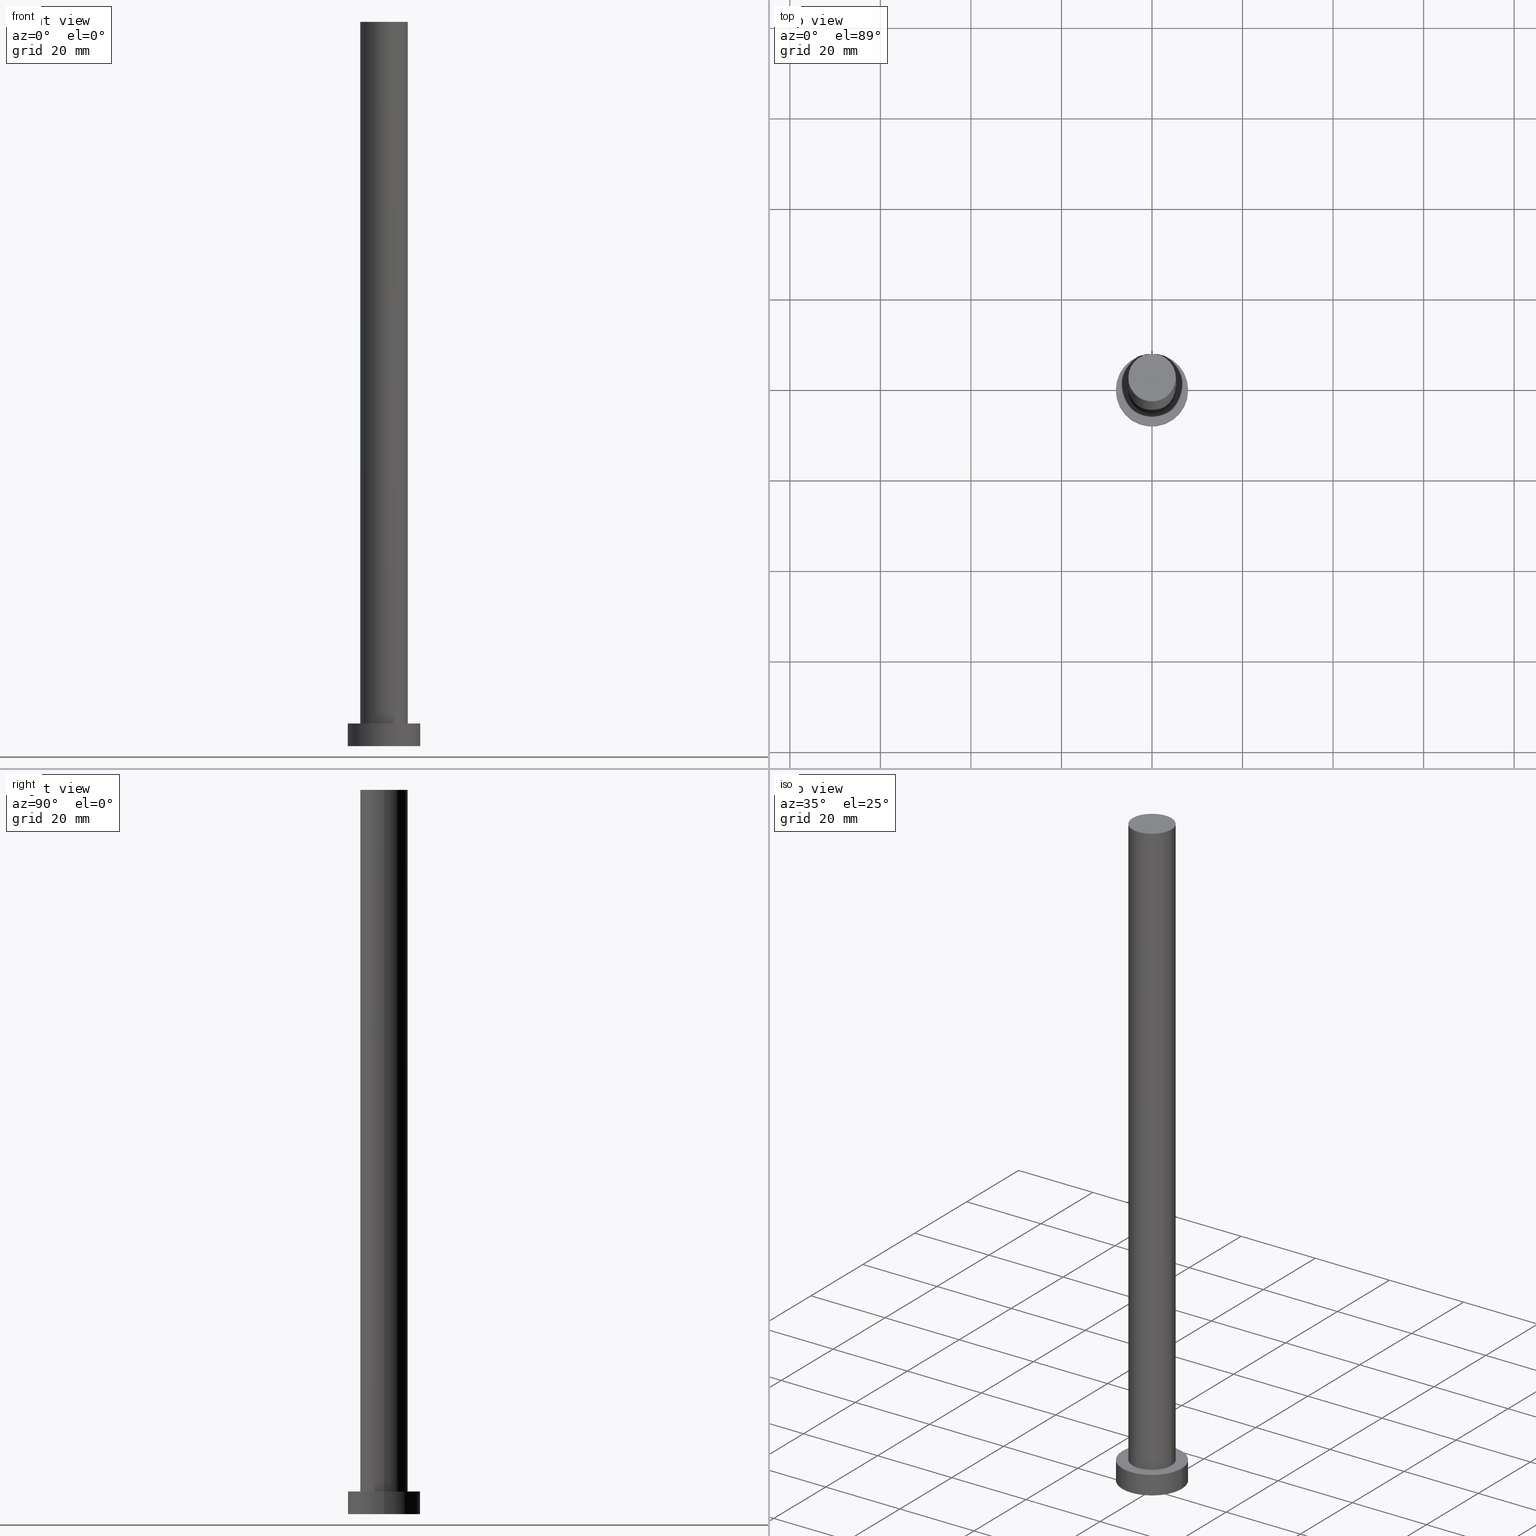
[diagram: canonical four-view strip — front | top / right | iso, engineering-drawing reading convention]
A machine part, canonical four-view strip (front | top / right | iso — engineering-drawing reading convention). The complete STEP part file that produces these views, byte-faithful:
ISO-10303-21;
HEADER;
FILE_DESCRIPTION (( 'STEP AP203' ),
    '1' );
FILE_NAME ('43b9.STEP',
    '2023-02-12T11:16:55',
    ( '' ),
    ( '' ),
    'SwSTEP 2.0',
    'SolidWorks 2019',
    '' );
FILE_SCHEMA (( 'CONFIG_CONTROL_DESIGN' ));
ENDSEC;

DATA;
#1 = CIRCLE ( 'NONE', #178, 8.000000000000000000 ) ;
#2 = LOCAL_TIME ( 12, 16, 55.00000000000000000, #119 ) ;
#3 = PERSON_AND_ORGANIZATION ( #254, #56 ) ;
#4 = LINE ( 'NONE', #229, #111 ) ;
#5 = ORIENTED_EDGE ( 'NONE', *, *, #198, .F. ) ;
#6 = PRODUCT_RELATED_PRODUCT_CATEGORY ( 'detail', '', ( #12 ) ) ;
#7 = PLANE ( 'NONE',  #174 ) ;
#8 = ORIENTED_EDGE ( 'NONE', *, *, #13, .T. ) ;
#9 = CARTESIAN_POINT ( 'NONE',  ( 0.000000000000000000, 0.000000000000000000, 160.0000000000000000 ) ) ;
#10 = AXIS2_PLACEMENT_3D ( 'NONE', #74, #87, #143 ) ;
#11 = ORIENTED_EDGE ( 'NONE', *, *, #114, .T. ) ;
#12 = PRODUCT ( '43b9', '43b9', '', ( #236 ) ) ;
#13 = EDGE_CURVE ( 'NONE', #46, #243, #59, .T. ) ;
#14 = AXIS2_PLACEMENT_3D ( 'NONE', #127, #32, #176 ) ;
#15 = ORIENTED_EDGE ( 'NONE', *, *, #249, .T. ) ;
#16 = LOCAL_TIME ( 12, 16, 55.00000000000000000, #234 ) ;
#17 = AXIS2_PLACEMENT_3D ( 'NONE', #36, #73, #146 ) ;
#18 = FACE_OUTER_BOUND ( 'NONE', #200, .T. ) ;
#19 = PERSON_AND_ORGANIZATION ( #254, #56 ) ;
#20 = FACE_OUTER_BOUND ( 'NONE', #157, .T. ) ;
#21 = ADVANCED_FACE ( 'NONE', ( #69 ), #199, .T. ) ;
#22 = CARTESIAN_POINT ( 'NONE',  ( 5.250000000000000888, 6.429395695523605139E-16, 160.0000000000000000 ) ) ;
#23 = ADVANCED_FACE ( 'NONE', ( #191 ), #90, .T. ) ;
#24 = PERSON_AND_ORGANIZATION_ROLE ( 'design_supplier' ) ;
#25 = DIRECTION ( 'NONE',  ( -1.000000000000000000, 0.000000000000000000, 0.000000000000000000 ) ) ;
#26 = ORIENTED_EDGE ( 'NONE', *, *, #114, .F. ) ;
#27 = DIRECTION ( 'NONE',  ( -0.000000000000000000, -0.000000000000000000, -1.000000000000000000 ) ) ;
#28 = AXIS2_PLACEMENT_3D ( 'NONE', #92, #212, #237 ) ;
#29 = ORIENTED_EDGE ( 'NONE', *, *, #108, .F. ) ;
#30 = VERTEX_POINT ( 'NONE', #161 ) ;
#31 = ORIENTED_EDGE ( 'NONE', *, *, #108, .T. ) ;
#32 = DIRECTION ( 'NONE',  ( 0.000000000000000000, 0.000000000000000000, 1.000000000000000000 ) ) ;
#33 = DATE_AND_TIME ( #201, #2 ) ;
#34 = APPROVAL ( #186, 'NEUR�EN�' ) ;
#35 = CC_DESIGN_APPROVAL ( #130, ( #116 ) ) ;
#36 = CARTESIAN_POINT ( 'NONE',  ( 0.000000000000000000, 0.000000000000000000, 0.000000000000000000 ) ) ;
#37 = CARTESIAN_POINT ( 'NONE',  ( 0.000000000000000000, 0.000000000000000000, 5.000000000000000000 ) ) ;
#38 = FACE_OUTER_BOUND ( 'NONE', #248, .T. ) ;
#39 = CARTESIAN_POINT ( 'NONE',  ( 0.000000000000000000, 0.000000000000000000, 5.000000000000000000 ) ) ;
#40 = VECTOR ( 'NONE', #27, 1000.000000000000000 ) ;
#41 = CC_DESIGN_DATE_AND_TIME_ASSIGNMENT ( #150, #110, ( #216 ) ) ;
#42 = APPLICATION_PROTOCOL_DEFINITION ( 'international standard', 'config_control_design', 1994, #151 ) ;
#43 = DIRECTION ( 'NONE',  ( -0.000000000000000000, -0.000000000000000000, -1.000000000000000000 ) ) ;
#44 = COORDINATED_UNIVERSAL_TIME_OFFSET ( 1, 0, .AHEAD. ) ;
#45 = APPROVAL_PERSON_ORGANIZATION ( #19, #130, #192 ) ;
#46 = VERTEX_POINT ( 'NONE', #203 ) ;
#47 = PERSON_AND_ORGANIZATION_ROLE ( 'classification_officer' ) ;
#48 = CARTESIAN_POINT ( 'NONE',  ( 0.000000000000000000, 0.000000000000000000, 5.000000000000000000 ) ) ;
#49 = LINE ( 'NONE', #221, #40 ) ;
#50 = ORIENTED_EDGE ( 'NONE', *, *, #13, .F. ) ;
#51 = FACE_OUTER_BOUND ( 'NONE', #64, .T. ) ;
#52 = ORIENTED_EDGE ( 'NONE', *, *, #82, .T. ) ;
#53 = DIRECTION ( 'NONE',  ( -1.000000000000000000, 0.000000000000000000, 0.000000000000000000 ) ) ;
#54 = ORIENTED_EDGE ( 'NONE', *, *, #140, .F. ) ;
#55 = DESIGN_CONTEXT ( 'detailed design', #151, 'design' ) ;
#56 = ORGANIZATION ( 'NEUR�EN�', 'NEUR�EN�', '' ) ;
#57 = DATE_AND_TIME ( #185, #206 ) ;
#58 = ADVANCED_FACE ( 'NONE', ( #38 ), #167, .T. ) ;
#59 = CIRCLE ( 'NONE', #14, 8.000000000000000000 ) ;
#60 = CALENDAR_DATE ( 2023, 12, 2 ) ;
#61 = DIRECTION ( 'NONE',  ( 1.000000000000000000, 0.000000000000000000, 0.000000000000000000 ) ) ;
#62 = APPROVAL_DATE_TIME ( #95, #121 ) ;
#63 = AXIS2_PLACEMENT_3D ( 'NONE', #39, #204, #61 ) ;
#64 = EDGE_LOOP ( 'NONE', ( #226, #85 ) ) ;
#65 = VERTEX_POINT ( 'NONE', #131 ) ;
#66 = PERSON_AND_ORGANIZATION ( #254, #56 ) ;
#67 = CARTESIAN_POINT ( 'NONE',  ( 0.000000000000000000, 0.000000000000000000, 0.000000000000000000 ) ) ;
#68 = ORIENTED_EDGE ( 'NONE', *, *, #97, .T. ) ;
#69 = FACE_OUTER_BOUND ( 'NONE', #223, .T. ) ;
#70 = ORIENTED_EDGE ( 'NONE', *, *, #189, .F. ) ;
#71 = AXIS2_PLACEMENT_3D ( 'NONE', #255, #129, #76 ) ;
#72 = AXIS2_PLACEMENT_3D ( 'NONE', #88, #112, #190 ) ;
#73 = DIRECTION ( 'NONE',  ( 0.000000000000000000, 0.000000000000000000, 1.000000000000000000 ) ) ;
#74 = CARTESIAN_POINT ( 'NONE',  ( 0.000000000000000000, 0.000000000000000000, 0.000000000000000000 ) ) ;
#75 = UNCERTAINTY_MEASURE_WITH_UNIT (LENGTH_MEASURE( 1.000000000000000082E-05 ), #96, 'distance_accuracy_value', 'NONE');
#76 = DIRECTION ( 'NONE',  ( -1.000000000000000000, 0.000000000000000000, 0.000000000000000000 ) ) ;
#77 = CALENDAR_DATE ( 2023, 12, 2 ) ;
#78 = AXIS2_PLACEMENT_3D ( 'NONE', #107, #184, #142 ) ;
#79 = LOCAL_TIME ( 12, 16, 55.00000000000000000, #84 ) ;
#80 = EDGE_CURVE ( 'NONE', #238, #30, #105, .T. ) ;
#81 = CARTESIAN_POINT ( 'NONE',  ( 0.000000000000000000, 0.000000000000000000, 5.000000000000000000 ) ) ;
#82 = EDGE_CURVE ( 'NONE', #30, #238, #1, .T. ) ;
#83 = ORIENTED_EDGE ( 'NONE', *, *, #118, .T. ) ;
#84 = COORDINATED_UNIVERSAL_TIME_OFFSET ( 1, 0, .AHEAD. ) ;
#85 = ORIENTED_EDGE ( 'NONE', *, *, #80, .F. ) ;
#86 = CIRCLE ( 'NONE', #252, 5.250000000000000888 ) ;
#87 = DIRECTION ( 'NONE',  ( 0.000000000000000000, 0.000000000000000000, 1.000000000000000000 ) ) ;
#88 = CARTESIAN_POINT ( 'NONE',  ( 0.000000000000000000, 0.000000000000000000, 5.000000000000000000 ) ) ;
#89 = DIRECTION ( 'NONE',  ( 1.000000000000000000, 0.000000000000000000, 0.000000000000000000 ) ) ;
#90 = CYLINDRICAL_SURFACE ( 'NONE', #71, 5.250000000000000888 ) ;
#91 = DATE_AND_TIME ( #60, #16 ) ;
#92 = CARTESIAN_POINT ( 'NONE',  ( 0.000000000000000000, 0.000000000000000000, 160.0000000000000000 ) ) ;
#93 = ADVANCED_BREP_SHAPE_REPRESENTATION ( '43b9', ( #222, #10 ), #120 ) ;
#94 = APPROVAL_PERSON_ORGANIZATION ( #215, #121, #102 ) ;
#95 = DATE_AND_TIME ( #210, #79 ) ;
#96 =( LENGTH_UNIT ( ) NAMED_UNIT ( * ) SI_UNIT ( .MILLI., .METRE. ) );
#97 = EDGE_CURVE ( 'NONE', #124, #153, #164, .T. ) ;
#98 = DIRECTION ( 'NONE',  ( 0.000000000000000000, 0.000000000000000000, 1.000000000000000000 ) ) ;
#99 = CC_DESIGN_PERSON_AND_ORGANIZATION_ASSIGNMENT ( #113, #251, ( #216 ) ) ;
#100 = DIRECTION ( 'NONE',  ( 0.000000000000000000, 0.000000000000000000, 1.000000000000000000 ) ) ;
#101 = AXIS2_PLACEMENT_3D ( 'NONE', #37, #207, #109 ) ;
#102 = APPROVAL_ROLE ( '' ) ;
#103 = CARTESIAN_POINT ( 'NONE',  ( 0.000000000000000000, 0.000000000000000000, 5.000000000000000000 ) ) ;
#104 = CC_DESIGN_PERSON_AND_ORGANIZATION_ASSIGNMENT ( #144, #171, ( #12 ) ) ;
#105 = CIRCLE ( 'NONE', #17, 8.000000000000000000 ) ;
#106 = CC_DESIGN_APPROVAL ( #121, ( #220 ) ) ;
#107 = CARTESIAN_POINT ( 'NONE',  ( 0.000000000000000000, 0.000000000000000000, 160.0000000000000000 ) ) ;
#108 = EDGE_CURVE ( 'NONE', #243, #46, #170, .T. ) ;
#109 = DIRECTION ( 'NONE',  ( 1.000000000000000000, 0.000000000000000000, 0.000000000000000000 ) ) ;
#110 = DATE_TIME_ROLE ( 'creation_date' ) ;
#111 = VECTOR ( 'NONE', #43, 1000.000000000000000 ) ;
#112 = DIRECTION ( 'NONE',  ( 0.000000000000000000, 0.000000000000000000, 1.000000000000000000 ) ) ;
#113 = PERSON_AND_ORGANIZATION ( #254, #56 ) ;
#114 = EDGE_CURVE ( 'NONE', #245, #124, #250, .T. ) ;
#115 = AXIS2_PLACEMENT_3D ( 'NONE', #169, #145, #187 ) ;
#116 = PRODUCT_DEFINITION_FORMATION_WITH_SPECIFIED_SOURCE ( 'LIBOVOLN�', '', #12, .NOT_KNOWN. ) ;
#117 = LINE ( 'NONE', #177, #183 ) ;
#118 = EDGE_CURVE ( 'NONE', #65, #153, #163, .T. ) ;
#119 = COORDINATED_UNIVERSAL_TIME_OFFSET ( 1, 0, .AHEAD. ) ;
#120 =( GEOMETRIC_REPRESENTATION_CONTEXT ( 3 ) GLOBAL_UNCERTAINTY_ASSIGNED_CONTEXT ( ( #75 ) ) GLOBAL_UNIT_ASSIGNED_CONTEXT ( ( #96, #244, #219 ) ) REPRESENTATION_CONTEXT ( 'NONE', 'WORKASPACE' ) );
#121 = APPROVAL ( #125, 'NEUR�EN�' ) ;
#122 = ORIENTED_EDGE ( 'NONE', *, *, #132, .T. ) ;
#123 = ORIENTED_EDGE ( 'NONE', *, *, #80, .T. ) ;
#124 = VERTEX_POINT ( 'NONE', #22 ) ;
#125 = APPROVAL_STATUS ( 'not_yet_approved' ) ;
#126 = CC_DESIGN_PERSON_AND_ORGANIZATION_ASSIGNMENT ( #241, #24, ( #116 ) ) ;
#127 = CARTESIAN_POINT ( 'NONE',  ( 0.000000000000000000, 0.000000000000000000, 5.000000000000000000 ) ) ;
#128 = CLOSED_SHELL ( 'NONE', ( #58, #180, #21, #166, #228, #23, #209 ) ) ;
#129 = DIRECTION ( 'NONE',  ( -0.000000000000000000, -0.000000000000000000, -1.000000000000000000 ) ) ;
#130 = APPROVAL ( #165, 'NEUR�EN�' ) ;
#131 = CARTESIAN_POINT ( 'NONE',  ( -5.250000000000000888, 0.000000000000000000, 5.000000000000000000 ) ) ;
#132 = EDGE_CURVE ( 'NONE', #124, #245, #156, .T. ) ;
#133 = PERSON_AND_ORGANIZATION ( #254, #56 ) ;
#134 = DIRECTION ( 'NONE',  ( 1.000000000000000000, 0.000000000000000000, 0.000000000000000000 ) ) ;
#135 = CC_DESIGN_PERSON_AND_ORGANIZATION_ASSIGNMENT ( #66, #47, ( #220 ) ) ;
#136 = APPLICATION_CONTEXT ( 'configuration controlled 3d designs of mechanical parts and assemblies' ) ;
#137 = ORIENTED_EDGE ( 'NONE', *, *, #118, .F. ) ;
#138 = DIRECTION ( 'NONE',  ( -0.000000000000000000, -0.000000000000000000, -1.000000000000000000 ) ) ;
#139 = ORIENTED_EDGE ( 'NONE', *, *, #140, .T. ) ;
#140 = EDGE_CURVE ( 'NONE', #243, #30, #4, .T. ) ;
#141 = ORIENTED_EDGE ( 'NONE', *, *, #249, .F. ) ;
#142 = DIRECTION ( 'NONE',  ( -1.000000000000000000, 0.000000000000000000, 0.000000000000000000 ) ) ;
#143 = DIRECTION ( 'NONE',  ( 1.000000000000000000, 0.000000000000000000, 0.000000000000000000 ) ) ;
#144 = PERSON_AND_ORGANIZATION ( #254, #56 ) ;
#145 = DIRECTION ( 'NONE',  ( 0.000000000000000000, 0.000000000000000000, 1.000000000000000000 ) ) ;
#146 = DIRECTION ( 'NONE',  ( 1.000000000000000000, 0.000000000000000000, 0.000000000000000000 ) ) ;
#147 = PRODUCT_DEFINITION_SHAPE ( 'NONE', 'NONE',  #216 ) ;
#148 = CC_DESIGN_DATE_AND_TIME_ASSIGNMENT ( #33, #160, ( #220 ) ) ;
#149 = AXIS2_PLACEMENT_3D ( 'NONE', #103, #247, #53 ) ;
#150 = DATE_AND_TIME ( #77, #224 ) ;
#151 = APPLICATION_CONTEXT ( 'configuration controlled 3d designs of mechanical parts and assemblies' ) ;
#152 = DIRECTION ( 'NONE',  ( 1.000000000000000000, 0.000000000000000000, -0.000000000000000000 ) ) ;
#153 = VERTEX_POINT ( 'NONE', #211 ) ;
#154 = DIRECTION ( 'NONE',  ( -0.000000000000000000, -0.000000000000000000, -1.000000000000000000 ) ) ;
#155 = ORIENTED_EDGE ( 'NONE', *, *, #132, .F. ) ;
#156 = CIRCLE ( 'NONE', #115, 5.250000000000000888 ) ;
#157 = EDGE_LOOP ( 'NONE', ( #50, #225, #123, #54 ) ) ;
#158 = EDGE_LOOP ( 'NONE', ( #137, #141 ) ) ;
#159 = ORIENTED_EDGE ( 'NONE', *, *, #198, .T. ) ;
#160 = DATE_TIME_ROLE ( 'classification_date' ) ;
#161 = CARTESIAN_POINT ( 'NONE',  ( -8.000000000000000000, 0.000000000000000000, 0.000000000000000000 ) ) ;
#162 = APPROVAL_DATE_TIME ( #57, #34 ) ;
#163 = CIRCLE ( 'NONE', #63, 5.250000000000000888 ) ;
#164 = LINE ( 'NONE', #233, #213 ) ;
#165 = APPROVAL_STATUS ( 'not_yet_approved' ) ;
#166 = ADVANCED_FACE ( 'NONE', ( #173, #18 ), #232, .T. ) ;
#167 = CYLINDRICAL_SURFACE ( 'NONE', #78, 5.250000000000000888 ) ;
#168 = APPROVAL_DATE_TIME ( #91, #130 ) ;
#169 = CARTESIAN_POINT ( 'NONE',  ( 0.000000000000000000, 0.000000000000000000, 160.0000000000000000 ) ) ;
#170 = CIRCLE ( 'NONE', #101, 8.000000000000000000 ) ;
#171 = PERSON_AND_ORGANIZATION_ROLE ( 'design_owner' ) ;
#172 = CC_DESIGN_SECURITY_CLASSIFICATION ( #220, ( #116 ) ) ;
#173 = FACE_BOUND ( 'NONE', #158, .T. ) ;
#174 = AXIS2_PLACEMENT_3D ( 'NONE', #67, #98, #152 ) ;
#175 = DIRECTION ( 'NONE',  ( 0.000000000000000000, 0.000000000000000000, 1.000000000000000000 ) ) ;
#176 = DIRECTION ( 'NONE',  ( 1.000000000000000000, 0.000000000000000000, 0.000000000000000000 ) ) ;
#177 = CARTESIAN_POINT ( 'NONE',  ( 8.000000000000000000, 9.797174393178825657E-16, 5.000000000000000000 ) ) ;
#178 = AXIS2_PLACEMENT_3D ( 'NONE', #230, #188, #89 ) ;
#179 = FACE_OUTER_BOUND ( 'NONE', #246, .T. ) ;
#180 = ADVANCED_FACE ( 'NONE', ( #20 ), #214, .T. ) ;
#181 = EDGE_LOOP ( 'NONE', ( #196, #26, #159, #83 ) ) ;
#182 = CC_DESIGN_PERSON_AND_ORGANIZATION_ASSIGNMENT ( #133, #208, ( #116 ) ) ;
#183 = VECTOR ( 'NONE', #154, 1000.000000000000000 ) ;
#184 = DIRECTION ( 'NONE',  ( -0.000000000000000000, -0.000000000000000000, -1.000000000000000000 ) ) ;
#185 = CALENDAR_DATE ( 2023, 12, 2 ) ;
#186 = APPROVAL_STATUS ( 'not_yet_approved' ) ;
#187 = DIRECTION ( 'NONE',  ( 1.000000000000000000, 0.000000000000000000, 0.000000000000000000 ) ) ;
#188 = DIRECTION ( 'NONE',  ( 0.000000000000000000, 0.000000000000000000, 1.000000000000000000 ) ) ;
#189 = EDGE_CURVE ( 'NONE', #46, #238, #117, .T. ) ;
#190 = DIRECTION ( 'NONE',  ( 1.000000000000000000, 0.000000000000000000, -0.000000000000000000 ) ) ;
#191 = FACE_OUTER_BOUND ( 'NONE', #181, .T. ) ;
#192 = APPROVAL_ROLE ( '' ) ;
#193 = APPROVAL_PERSON_ORGANIZATION ( #3, #34, #227 ) ;
#194 = PLANE ( 'NONE',  #202 ) ;
#195 = AXIS2_PLACEMENT_3D ( 'NONE', #81, #138, #25 ) ;
#196 = ORIENTED_EDGE ( 'NONE', *, *, #97, .F. ) ;
#197 = CARTESIAN_POINT ( 'NONE',  ( 8.000000000000000000, 9.797174393178825657E-16, 0.000000000000000000 ) ) ;
#198 = EDGE_CURVE ( 'NONE', #245, #65, #49, .T. ) ;
#199 = CYLINDRICAL_SURFACE ( 'NONE', #149, 8.000000000000000000 ) ;
#200 = EDGE_LOOP ( 'NONE', ( #31, #8 ) ) ;
#201 = CALENDAR_DATE ( 2023, 12, 2 ) ;
#202 = AXIS2_PLACEMENT_3D ( 'NONE', #9, #175, #242 ) ;
#203 = CARTESIAN_POINT ( 'NONE',  ( 8.000000000000000000, 9.797174393178825657E-16, 5.000000000000000000 ) ) ;
#204 = DIRECTION ( 'NONE',  ( 0.000000000000000000, 0.000000000000000000, 1.000000000000000000 ) ) ;
#205 = DIRECTION ( 'NONE',  ( -0.000000000000000000, -0.000000000000000000, -1.000000000000000000 ) ) ;
#206 = LOCAL_TIME ( 12, 16, 55.00000000000000000, #44 ) ;
#207 = DIRECTION ( 'NONE',  ( 0.000000000000000000, 0.000000000000000000, 1.000000000000000000 ) ) ;
#208 = PERSON_AND_ORGANIZATION_ROLE ( 'creator' ) ;
#209 = ADVANCED_FACE ( 'NONE', ( #179 ), #194, .T. ) ;
#210 = CALENDAR_DATE ( 2023, 12, 2 ) ;
#211 = CARTESIAN_POINT ( 'NONE',  ( 5.250000000000000888, 6.429395695523605139E-16, 5.000000000000000000 ) ) ;
#212 = DIRECTION ( 'NONE',  ( 0.000000000000000000, 0.000000000000000000, 1.000000000000000000 ) ) ;
#213 = VECTOR ( 'NONE', #205, 1000.000000000000000 ) ;
#214 = CYLINDRICAL_SURFACE ( 'NONE', #195, 8.000000000000000000 ) ;
#215 = PERSON_AND_ORGANIZATION ( #254, #56 ) ;
#216 = PRODUCT_DEFINITION ( 'NEZN�M�', '', #116, #55 ) ;
#217 = CARTESIAN_POINT ( 'NONE',  ( -5.250000000000000888, 0.000000000000000000, 160.0000000000000000 ) ) ;
#218 = SHAPE_DEFINITION_REPRESENTATION ( #147, #93 ) ;
#219 =( NAMED_UNIT ( * ) SI_UNIT ( $, .STERADIAN. ) SOLID_ANGLE_UNIT ( ) );
#220 = SECURITY_CLASSIFICATION ( '', '', #239 ) ;
#221 = CARTESIAN_POINT ( 'NONE',  ( -5.250000000000000888, 0.000000000000000000, 160.0000000000000000 ) ) ;
#222 = MANIFOLD_SOLID_BREP ( 'P�idat vysunut�m3', #128 ) ;
#223 = EDGE_LOOP ( 'NONE', ( #70, #29, #139, #52 ) ) ;
#224 = LOCAL_TIME ( 12, 16, 55.00000000000000000, #253 ) ;
#225 = ORIENTED_EDGE ( 'NONE', *, *, #189, .T. ) ;
#226 = ORIENTED_EDGE ( 'NONE', *, *, #82, .F. ) ;
#227 = APPROVAL_ROLE ( '' ) ;
#228 = ADVANCED_FACE ( 'NONE', ( #51 ), #7, .F. ) ;
#229 = CARTESIAN_POINT ( 'NONE',  ( -8.000000000000000000, 0.000000000000000000, 5.000000000000000000 ) ) ;
#230 = CARTESIAN_POINT ( 'NONE',  ( 0.000000000000000000, 0.000000000000000000, 0.000000000000000000 ) ) ;
#231 = APPLICATION_PROTOCOL_DEFINITION ( 'international standard', 'config_control_design', 1994, #136 ) ;
#232 = PLANE ( 'NONE',  #72 ) ;
#233 = CARTESIAN_POINT ( 'NONE',  ( 5.250000000000000888, 6.429395695523605139E-16, 160.0000000000000000 ) ) ;
#234 = COORDINATED_UNIVERSAL_TIME_OFFSET ( 1, 0, .AHEAD. ) ;
#235 = CC_DESIGN_APPROVAL ( #34, ( #216 ) ) ;
#236 = MECHANICAL_CONTEXT ( 'NONE', #136, 'mechanical' ) ;
#237 = DIRECTION ( 'NONE',  ( 1.000000000000000000, 0.000000000000000000, 0.000000000000000000 ) ) ;
#238 = VERTEX_POINT ( 'NONE', #197 ) ;
#239 = SECURITY_CLASSIFICATION_LEVEL ( 'unclassified' ) ;
#240 = CARTESIAN_POINT ( 'NONE',  ( -8.000000000000000000, 0.000000000000000000, 5.000000000000000000 ) ) ;
#241 = PERSON_AND_ORGANIZATION ( #254, #56 ) ;
#242 = DIRECTION ( 'NONE',  ( 1.000000000000000000, 0.000000000000000000, -0.000000000000000000 ) ) ;
#243 = VERTEX_POINT ( 'NONE', #240 ) ;
#244 =( NAMED_UNIT ( * ) PLANE_ANGLE_UNIT ( ) SI_UNIT ( $, .RADIAN. ) );
#245 = VERTEX_POINT ( 'NONE', #217 ) ;
#246 = EDGE_LOOP ( 'NONE', ( #11, #122 ) ) ;
#247 = DIRECTION ( 'NONE',  ( -0.000000000000000000, -0.000000000000000000, -1.000000000000000000 ) ) ;
#248 = EDGE_LOOP ( 'NONE', ( #155, #68, #15, #5 ) ) ;
#249 = EDGE_CURVE ( 'NONE', #153, #65, #86, .T. ) ;
#250 = CIRCLE ( 'NONE', #28, 5.250000000000000888 ) ;
#251 = PERSON_AND_ORGANIZATION_ROLE ( 'creator' ) ;
#252 = AXIS2_PLACEMENT_3D ( 'NONE', #48, #100, #134 ) ;
#253 = COORDINATED_UNIVERSAL_TIME_OFFSET ( 1, 0, .AHEAD. ) ;
#254 = PERSON ( 'NEUR�EN�', 'NEUR�EN�', 'NEUR�EN�', ('NEUR�EN�'), ('NEUR�EN�'), ('NEUR�EN�') ) ;
#255 = CARTESIAN_POINT ( 'NONE',  ( 0.000000000000000000, 0.000000000000000000, 160.0000000000000000 ) ) ;
ENDSEC;
END-ISO-10303-21;
